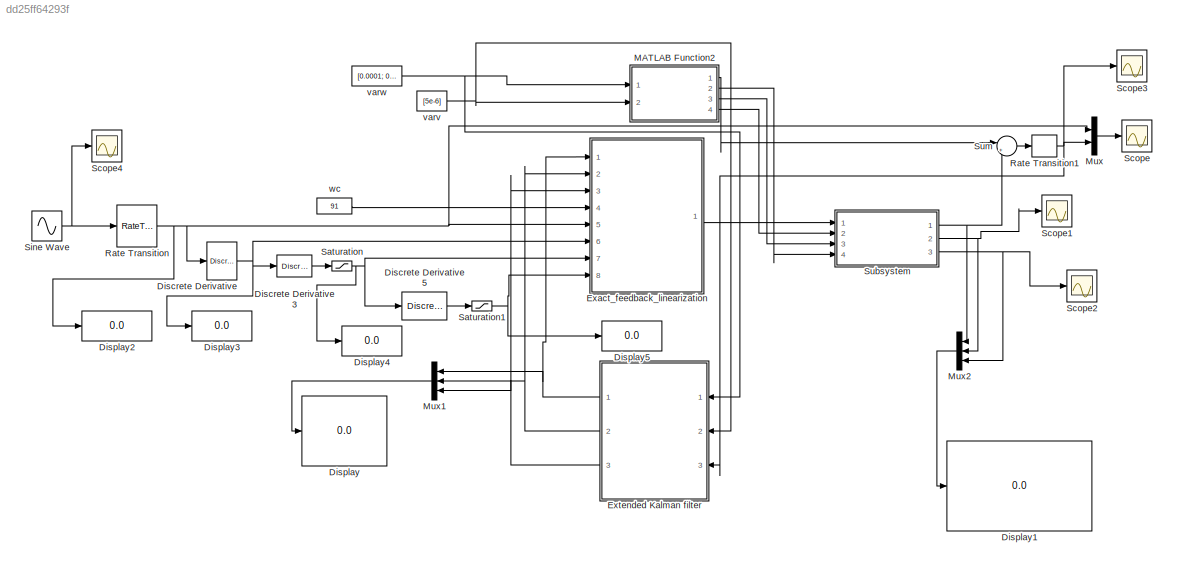
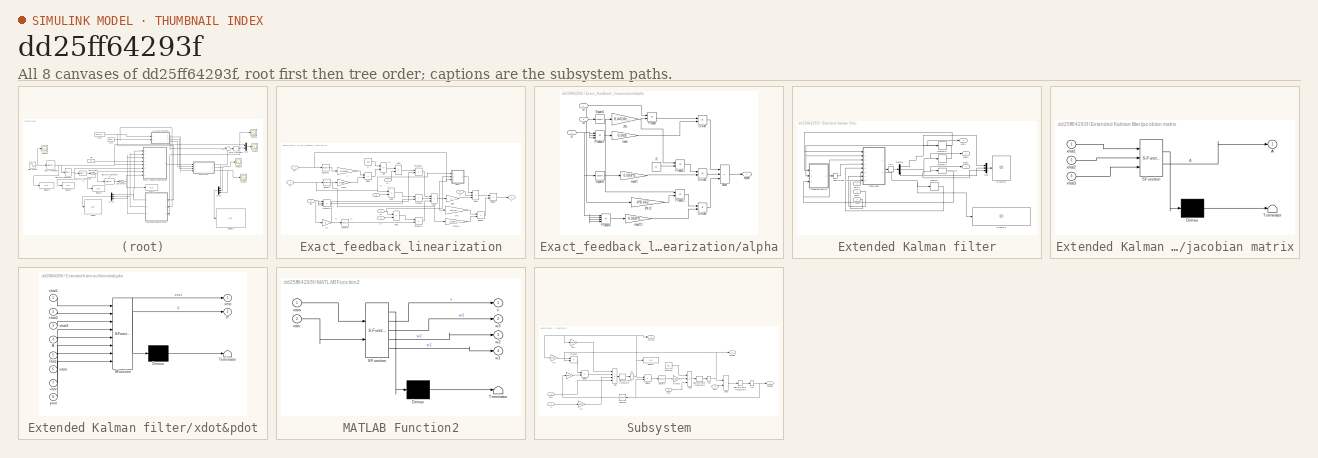
[diagram: thumbnail index - all 8 canvases of the model, root first then tree order]
MODEL slx_dd25ff64293f
KIND model
CONFIG AbsTol = auto
CONFIG EnableMultiTasking = off
CONFIG FixedStep = 0.001
CONFIG MaxStep = auto
CONFIG MinStep = auto
CONFIG RelTol = 1e-3
CONFIG SampleTimeConstraint = Unconstrained
CONFIG SolverName = FixedStepAuto
CONFIG StartTime = 0.0
CONFIG StopTime = 1
BLOCK [Reference] Discrete Derivative  REF=simulink/Discrete/Discrete Derivative
  Ports = [1, 1]
  SourceBlock = simulink/Discrete/Discrete Derivative
  SourceProductBaseCode = SL
  SourceType = Discrete Derivative
BLOCK [Reference] Discrete Derivative3  REF=simulink/Discrete/Discrete Derivative
  Ports = [1, 1]
  SourceBlock = simulink/Discrete/Discrete Derivative
  SourceProductBaseCode = SL
  SourceType = Discrete Derivative
BLOCK [Reference] Discrete Derivative5  REF=simulink/Discrete/Discrete Derivative
  Ports = [1, 1]
  SourceBlock = simulink/Discrete/Discrete Derivative
  SourceProductBaseCode = SL
  SourceType = Discrete Derivative
BLOCK [Display] Display
  Decimation = 1
  Ports = [1]
BLOCK [Display] Display1
  Decimation = 1
  Ports = [1]
BLOCK [Display] Display2
  Decimation = 1
  Ports = [1]
BLOCK [Display] Display3
  Decimation = 1
  Ports = [1]
BLOCK [Display] Display4
  Decimation = 1
  Ports = [1]
BLOCK [Display] Display5
  Decimation = 1
  Ports = [1]
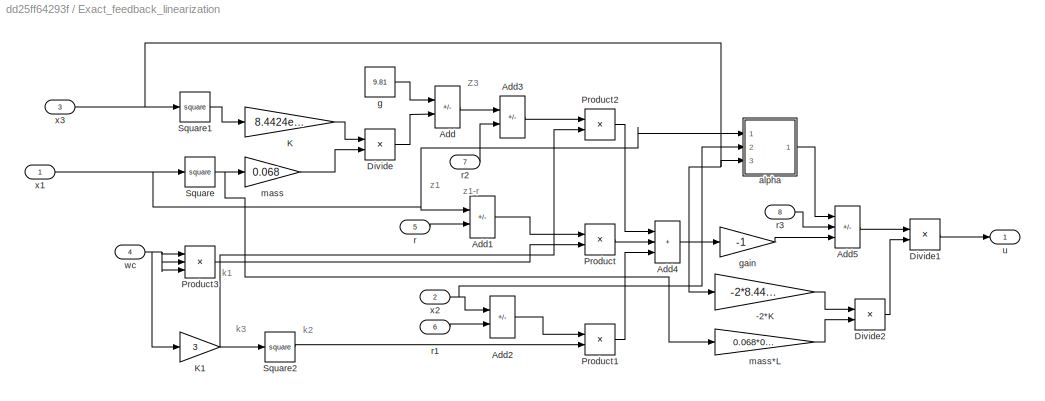
BLOCK [SubSystem] Exact_feedback_linearization
  Ports = [8, 1]
  RequestExecContextInheritance = off
BLOCK [Gain] Exact_feedback_linearization/-2*K
  Gain = -2*8.4424e-05
BLOCK [Sum] Exact_feedback_linearization/Add
  IconShape = rectangular
  Inputs = +-
  Ports = [2, 1]
BLOCK [Sum] Exact_feedback_linearization/Add1
  IconShape = rectangular
  Inputs = +-
  Ports = [2, 1]
BLOCK [Sum] Exact_feedback_linearization/Add2
  IconShape = rectangular
  Inputs = +-
  Ports = [2, 1]
BLOCK [Sum] Exact_feedback_linearization/Add3
  IconShape = rectangular
  Inputs = +-
  Ports = [2, 1]
BLOCK [Sum] Exact_feedback_linearization/Add4
  IconShape = rectangular
  Inputs = +++
  Ports = [3, 1]
BLOCK [Sum] Exact_feedback_linearization/Add5
  IconShape = rectangular
  Inputs = -++
  Ports = [3, 1]
BLOCK [Product] Exact_feedback_linearization/Divide
  Inputs = */
  Ports = [2, 1]
BLOCK [Product] Exact_feedback_linearization/Divide1
  Inputs = */
  Ports = [2, 1]
BLOCK [Product] Exact_feedback_linearization/Divide2
  Inputs = */
  Ports = [2, 1]
BLOCK [Gain] Exact_feedback_linearization/K
  Gain = 8.4424e-05
BLOCK [Gain] Exact_feedback_linearization/K1
  Gain = 3
BLOCK [Product] Exact_feedback_linearization/Product
  Ports = [2, 1]
BLOCK [Product] Exact_feedback_linearization/Product1
  Ports = [2, 1]
BLOCK [Product] Exact_feedback_linearization/Product2
  Ports = [2, 1]
BLOCK [Product] Exact_feedback_linearization/Product3
  Inputs = 3
  Ports = [3, 1]
BLOCK [Math] Exact_feedback_linearization/Square
  Operator = square
  Ports = [1, 1]
BLOCK [Math] Exact_feedback_linearization/Square1
  Operator = square
  Ports = [1, 1]
BLOCK [Math] Exact_feedback_linearization/Square2
  Operator = square
  Ports = [1, 1]
BLOCK [SubSystem] Exact_feedback_linearization/alpha
  Ports = [3, 1]
  RequestExecContextInheritance = off
BLOCK [Gain] Exact_feedback_linearization/alpha/2*K
  Gain = 8.4424e-05*2
BLOCK [Gain] Exact_feedback_linearization/alpha/4*K^2
  Gain = 4*8.4424e-05^2
BLOCK [Sum] Exact_feedback_linearization/alpha/Add
  IconShape = rectangular
  Inputs = ++-
  Ports = [3, 1]
BLOCK [Product] Exact_feedback_linearization/alpha/Divide
  Inputs = */
  Ports = [2, 1]
BLOCK [Product] Exact_feedback_linearization/alpha/Divide1
  Inputs = */
  Ports = [2, 1]
BLOCK [Product] Exact_feedback_linearization/alpha/Divide2
  Inputs = */
  Ports = [2, 1]
BLOCK [Product] Exact_feedback_linearization/alpha/Product
  Ports = [2, 1]
BLOCK [Product] Exact_feedback_linearization/alpha/Product1
  Ports = [2, 1]
BLOCK [Product] Exact_feedback_linearization/alpha/Product2
  Ports = [2, 1]
BLOCK [Product] Exact_feedback_linearization/alpha/Product3
  Inputs = 3
  Ports = [3, 1]
BLOCK [Product] Exact_feedback_linearization/alpha/Product4
  Inputs = 4
  Ports = [4, 1]
BLOCK [Constant] Exact_feedback_linearization/alpha/R
  Value = 22
BLOCK [Math] Exact_feedback_linearization/alpha/Square1
  Operator = square
  Ports = [1, 1]
BLOCK [Math] Exact_feedback_linearization/alpha/Square2
  Operator = square
  Ports = [1, 1]
BLOCK [Outport] Exact_feedback_linearization/alpha/alpha
BLOCK [Gain] Exact_feedback_linearization/alpha/mass
  Gain = 0.068
BLOCK [Gain] Exact_feedback_linearization/alpha/mass*l
  Gain = 0.068*0.227
BLOCK [Gain] Exact_feedback_linearization/alpha/mass*l1
  Gain = 0.068*0.227
BLOCK [Inport] Exact_feedback_linearization/alpha/x1
BLOCK [Inport] Exact_feedback_linearization/alpha/x2
  Port = 2
BLOCK [Inport] Exact_feedback_linearization/alpha/x3
  Port = 3
BLOCK [Constant] Exact_feedback_linearization/g
  Value = 9.81
BLOCK [Gain] Exact_feedback_linearization/gain
  Gain = -1
BLOCK [Gain] Exact_feedback_linearization/mass
  Gain = 0.068
BLOCK [Gain] Exact_feedback_linearization/mass*L
  Gain = 0.068*0.227
BLOCK [Inport] Exact_feedback_linearization/r
  Port = 5
BLOCK [Inport] Exact_feedback_linearization/r1
  Port = 6
BLOCK [Inport] Exact_feedback_linearization/r2
  Port = 7
BLOCK [Inport] Exact_feedback_linearization/r3
  Port = 8
BLOCK [Outport] Exact_feedback_linearization/u
BLOCK [Inport] Exact_feedback_linearization/wc
  Port = 4
BLOCK [Inport] Exact_feedback_linearization/x1
BLOCK [Inport] Exact_feedback_linearization/x2
  Port = 2
BLOCK [Inport] Exact_feedback_linearization/x3
  Port = 3
BLOCK [SubSystem] Extended Kalman filter
  Ports = [3, 3]
  RequestExecContextInheritance = off
BLOCK [Demux] Extended Kalman filter/Demux
  Outputs = 3
  Ports = [1, 3]
BLOCK [Display] Extended Kalman filter/Display1
  Decimation = 1
  Ports = [1]
BLOCK [Display] Extended Kalman filter/Display3
  Decimation = 1
  Ports = [1]
BLOCK [InitialCondition] Extended Kalman filter/IC2
  Value = [0.0095;0;0.84]
BLOCK [Memory] Extended Kalman filter/Memory
  InitialCondition = [0.00003 0 0;0 0.1 0;0 0 10]
BLOCK [Memory] Extended Kalman filter/Memory1
  InitialCondition = 0.0001
BLOCK [Memory] Extended Kalman filter/Memory2
  InitialCondition = 0.0095
BLOCK [Memory] Extended Kalman filter/Memory3
  InitialCondition = 0.84
BLOCK [Mux] Extended Kalman filter/Mux
  DisplayOption = bar
  Inputs = 3
  Ports = [3, 1]
BLOCK [ZeroOrderHold] Extended Kalman filter/Zero-Order Hold
  SampleTime = 0.001
BLOCK [SubSystem] Extended Kalman filter/jacobian matrix
  ErrorFcn = Stateflow.Translate.translate
  PermitHierarchicalResolution = ExplicitOnly
  Ports = [3, 1]
  RequestExecContextInheritance = off
  SFBlockType = MATLAB Function
  TreatAsAtomicUnit = on
BLOCK [Demux] Extended Kalman filter/jacobian matrix/ Demux 
  Outputs = 1
  Ports = [1, 1]
BLOCK [S-Function] Extended Kalman filter/jacobian matrix/ SFunction 
  EnableBusSupport = on
  FunctionName = sf_sfun
  PortCounts = [3 2]
  Ports = [3, 2]
  SFcnIsStateOwnerBlock = off
  SFunctionDeploymentMode = off
  Tag = Stateflow S-Function 2
BLOCK [Terminator] Extended Kalman filter/jacobian matrix/ Terminator 
BLOCK [Outport] Extended Kalman filter/jacobian matrix/A
BLOCK [Inport] Extended Kalman filter/jacobian matrix/xhat1
BLOCK [Inport] Extended Kalman filter/jacobian matrix/xhat2
  Port = 2
BLOCK [Inport] Extended Kalman filter/jacobian matrix/xhat3
  Port = 3
BLOCK [Inport] Extended Kalman filter/varv1
  Port = 2
BLOCK [Inport] Extended Kalman filter/varw1
BLOCK [SubSystem] Extended Kalman filter/xdot&pdot
  ErrorFcn = Stateflow.Translate.translate
  PermitHierarchicalResolution = ExplicitOnly
  Ports = [8, 2]
  RequestExecContextInheritance = off
  SFBlockType = MATLAB Function
  TreatAsAtomicUnit = on
BLOCK [Demux] Extended Kalman filter/xdot&pdot/ Demux 
  Outputs = 1
  Ports = [1, 1]
BLOCK [S-Function] Extended Kalman filter/xdot&pdot/ SFunction 
  EnableBusSupport = on
  FunctionName = sf_sfun
  PortCounts = [8 3]
  Ports = [8, 3]
  SFcnIsStateOwnerBlock = off
  SFunctionDeploymentMode = off
  Tag = Stateflow S-Function 1
BLOCK [Terminator] Extended Kalman filter/xdot&pdot/ Terminator 
BLOCK [Inport] Extended Kalman filter/xdot&pdot/A
  Port = 4
BLOCK [Outport] Extended Kalman filter/xdot&pdot/P
  Port = 2
BLOCK [Inport] Extended Kalman filter/xdot&pdot/Pold
  Port = 5
BLOCK [Inport] Extended Kalman filter/xdot&pdot/varv
  Port = 7
BLOCK [Inport] Extended Kalman filter/xdot&pdot/varw
  Port = 6
BLOCK [Outport] Extended Kalman filter/xdot&pdot/xest
BLOCK [Inport] Extended Kalman filter/xdot&pdot/xhat1
BLOCK [Inport] Extended Kalman filter/xdot&pdot/xhat2
  Port = 2
BLOCK [Inport] Extended Kalman filter/xdot&pdot/xhat3
  Port = 3
BLOCK [Inport] Extended Kalman filter/xdot&pdot/yout
  Port = 8
BLOCK [Outport] Extended Kalman filter/xhat1
BLOCK [Outport] Extended Kalman filter/xhat2
  Port = 2
BLOCK [Outport] Extended Kalman filter/xhat3
  Port = 3
BLOCK [Inport] Extended Kalman filter/yout
  Port = 3
BLOCK [SubSystem] MATLAB Function2
  ErrorFcn = Stateflow.Translate.translate
  PermitHierarchicalResolution = ExplicitOnly
  Ports = [2, 4]
  RequestExecContextInheritance = off
  SFBlockType = MATLAB Function
  TreatAsAtomicUnit = on
BLOCK [Demux] MATLAB Function2/ Demux 
  Outputs = 1
  Ports = [1, 1]
BLOCK [S-Function] MATLAB Function2/ SFunction 
  EnableBusSupport = on
  FunctionName = sf_sfun
  PortCounts = [2 5]
  Ports = [2, 5]
  SFcnIsStateOwnerBlock = off
  SFunctionDeploymentMode = off
  Tag = Stateflow S-Function 3
BLOCK [Terminator] MATLAB Function2/ Terminator 
BLOCK [Outport] MATLAB Function2/v
BLOCK [Inport] MATLAB Function2/varv
  Port = 2
BLOCK [Inport] MATLAB Function2/varw
BLOCK [Outport] MATLAB Function2/w1
  Port = 4
BLOCK [Outport] MATLAB Function2/w2
  Port = 3
BLOCK [Outport] MATLAB Function2/w3
  Port = 2
BLOCK [Mux] Mux
  DisplayOption = bar
  Inputs = 2
  Ports = [2, 1]
BLOCK [Mux] Mux1
  DisplayOption = bar
  Inputs = 3
  Ports = [3, 1]
BLOCK [Mux] Mux2
  DisplayOption = bar
  Inputs = 3
  Ports = [3, 1]
BLOCK [RateTransition] Rate Transition
BLOCK [RateTransition] Rate Transition1
BLOCK [Saturate] Saturation
  LowerLimit = -1
  UpperLimit = 1
BLOCK [Saturate] Saturation1
  LowerLimit = -4
  UpperLimit = 4
BLOCK [Scope] Scope
  Floating = off
  NumInputPorts = 1
  Ports = [1]
  ScopeSpecificationString = Simulink.scopes.TimeScopeBlockCfg('CurrentConfiguration', extmgr.ConfigurationSet(extmgr.Configuration('Core','General UI',true),extmgr.Configuration('Core','Source UI',true),extmgr.Configuration('Sources','WiredSimulink',true,'DataLoggingVariableName','ScopeData3'),extmgr.Configuration('Visuals','Time Domain',true,'SerializedDisplays',{struct('MinYLimReal','-20509765062330348814894003248927041085...<+2536ch>
BLOCK [Scope] Scope1
  Floating = off
  NumInputPorts = 1
  Ports = [1]
  ScopeSpecificationString = Simulink.scopes.TimeScopeBlockCfg('CurrentConfiguration', extmgr.ConfigurationSet(extmgr.Configuration('Core','General UI',true),extmgr.Configuration('Core','Source UI',true),extmgr.Configuration('Sources','WiredSimulink',true,'DataLoggingVariableName','ScopeData1'),extmgr.Configuration('Visuals','Time Domain',true,'SerializedDisplays',{struct('MinYLimReal','-0.00015','MaxYLimReal','0.00135','YLab...<+1401ch>
BLOCK [Scope] Scope2
  Floating = off
  NumInputPorts = 1
  Ports = [1]
  ScopeSpecificationString = Simulink.scopes.TimeScopeBlockCfg('CurrentConfiguration', extmgr.ConfigurationSet(extmgr.Configuration('Core','General UI',true),extmgr.Configuration('Core','Source UI',true),extmgr.Configuration('Sources','WiredSimulink',true,'DataLoggingVariableName','ScopeData2'),extmgr.Configuration('Visuals','Time Domain',true,'SerializedDisplays',{struct('MinYLimReal','-0.00015','MaxYLimReal','0.00135','YLab...<+1401ch>
BLOCK [Scope] Scope3
  Floating = off
  NumInputPorts = 1
  Ports = [1]
  ScopeSpecificationString = Simulink.scopes.TimeScopeBlockCfg('CurrentConfiguration', extmgr.ConfigurationSet(extmgr.Configuration('Core','General UI',true),extmgr.Configuration('Core','Source UI',true),extmgr.Configuration('Sources','WiredSimulink',true),extmgr.Configuration('Visuals','Time Domain',true,'SerializedDisplays',{struct('MinYLimReal','-0.24743','MaxYLimReal','2.2793','YLabelReal','','MinYLimMag','0.00000','MaxYL...<+1346ch>
BLOCK [Scope] Scope4
  Floating = off
  NumInputPorts = 1
  Ports = [1]
  ScopeSpecificationString = Simulink.scopes.TimeScopeBlockCfg('CurrentConfiguration', extmgr.ConfigurationSet(extmgr.Configuration('Core','General UI',true),extmgr.Configuration('Core','Source UI',true),extmgr.Configuration('Sources','WiredSimulink',true,'DataLoggingVariableName','ScopeData1'),extmgr.Configuration('Visuals','Time Domain',true,'SerializedDisplays',{struct('MinYLimReal','-0.0125','MaxYLimReal','0.1125','YLabel...<+1389ch>
BLOCK [Sin] Sine Wave
  Amplitude = 0.1
  Frequency = 3
  Ports = [0, 1]
  SampleTime = 0
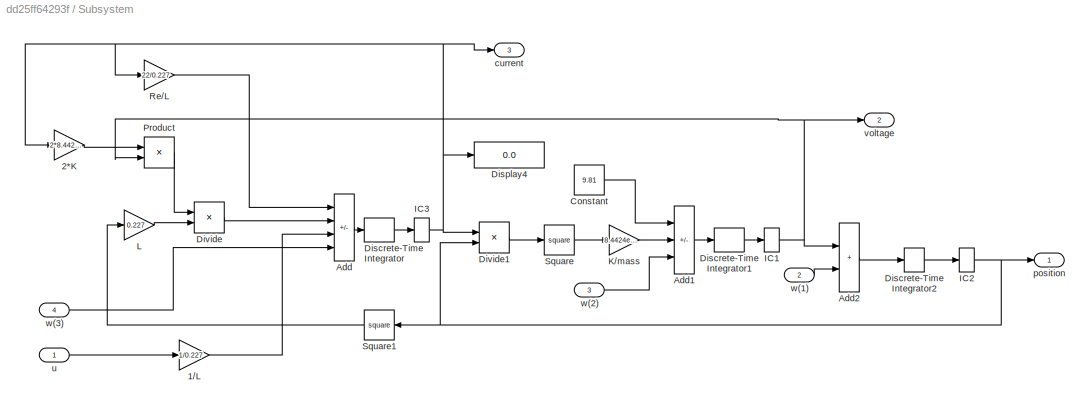
BLOCK [SubSystem] Subsystem
  Ports = [4, 3]
  RequestExecContextInheritance = off
BLOCK [Gain] Subsystem/1//L
  Gain = 1/0.227
BLOCK [Gain] Subsystem/2*K
  Gain = 2*8.4424e-05
BLOCK [Sum] Subsystem/Add
  IconShape = rectangular
  Inputs = -+++
  Ports = [4, 1]
BLOCK [Sum] Subsystem/Add1
  IconShape = rectangular
  Inputs = +-+
  Ports = [3, 1]
BLOCK [Sum] Subsystem/Add2
  IconShape = rectangular
  Ports = [2, 1]
BLOCK [Constant] Subsystem/Constant
  SampleTime = -1
  Value = 9.81
BLOCK [DiscreteIntegrator] Subsystem/Discrete-Time Integrator
  ICPrevOutput = DiscIntNeverNeededParam
  ICPrevScaledInput = DiscIntNeverNeededParam
  InitialConditionSetting = Auto
  LowerSaturationLimit = -100
  Ports = [1, 1]
  SampleTime = -1
  UpperSaturationLimit = 100
BLOCK [DiscreteIntegrator] Subsystem/Discrete-Time Integrator1
  ICPrevOutput = DiscIntNeverNeededParam
  ICPrevScaledInput = DiscIntNeverNeededParam
  InitialConditionSetting = Auto
  LowerSaturationLimit = -50
  Ports = [1, 1]
  SampleTime = -1
  UpperSaturationLimit = 50
BLOCK [DiscreteIntegrator] Subsystem/Discrete-Time Integrator2
  ICPrevOutput = DiscIntNeverNeededParam
  ICPrevScaledInput = DiscIntNeverNeededParam
  InitialConditionSetting = Auto
  LowerSaturationLimit = -5
  Ports = [1, 1]
  SampleTime = -1
  UpperSaturationLimit = 5
BLOCK [Display] Subsystem/Display4
  Decimation = 1
  Ports = [1]
BLOCK [Product] Subsystem/Divide
  Inputs = */
  Ports = [2, 1]
BLOCK [Product] Subsystem/Divide1
  Inputs = */
  Ports = [2, 1]
BLOCK [InitialCondition] Subsystem/IC1
  Value = 0
BLOCK [InitialCondition] Subsystem/IC2
  Value = 0.009
BLOCK [InitialCondition] Subsystem/IC3
  Value = 0.8
BLOCK [Gain] Subsystem/K//mass
  Gain = 8.4424e-05/0.068
BLOCK [Gain] Subsystem/L
  Gain = 0.227
BLOCK [Product] Subsystem/Product
  Ports = [2, 1]
BLOCK [Gain] Subsystem/Re//L
  Gain = 22/0.227
BLOCK [Math] Subsystem/Square
  Operator = square
  Ports = [1, 1]
BLOCK [Math] Subsystem/Square1
  Operator = square
  Ports = [1, 1]
BLOCK [Outport] Subsystem/current
  Port = 3
BLOCK [Outport] Subsystem/position
BLOCK [Inport] Subsystem/u
BLOCK [Outport] Subsystem/voltage
  Port = 2
BLOCK [Inport] Subsystem/w(1)
  Port = 2
BLOCK [Inport] Subsystem/w(2)
  Port = 3
BLOCK [Inport] Subsystem/w(3)
  Port = 4
BLOCK [Sum] Sum
  Inputs = |++
  Ports = [2, 1]
BLOCK [Constant] varv
  SampleTime = -1
  Value = [5e-6]
BLOCK [Constant] varw
  SampleTime = -1
  Value = [0.0001; 0.01;0.0001]
BLOCK [Constant] wc
  Value = 91
ANNOTATION Exact_feedback_linearization: Z3
ANNOTATION Exact_feedback_linearization: k1
ANNOTATION Exact_feedback_linearization: k2
ANNOTATION Exact_feedback_linearization: k3
ANNOTATION Exact_feedback_linearization: z1
ANNOTATION Exact_feedback_linearization: z1-r
LINE Discrete Derivative3:1 -> Saturation:1
LINE Discrete Derivative5:1 -> Saturation1:1
NET Discrete Derivative:1 -> Discrete Derivative3:1, Display3:1, Exact_feedback_linearization:6
LINE Exact_feedback_linearization/-2*K:1 -> Exact_feedback_linearization/Divide2:1
LINE Exact_feedback_linearization/Add1:1 -> Exact_feedback_linearization/Product:1
LINE Exact_feedback_linearization/Add2:1 -> Exact_feedback_linearization/Product1:1
LINE Exact_feedback_linearization/Add3:1 -> Exact_feedback_linearization/Product2:1
LINE Exact_feedback_linearization/Add4:1 -> Exact_feedback_linearization/gain:1
LINE Exact_feedback_linearization/Add5:1 -> Exact_feedback_linearization/Divide1:1
LINE Exact_feedback_linearization/Add:1 -> Exact_feedback_linearization/Add3:1
LINE Exact_feedback_linearization/Divide1:1 -> Exact_feedback_linearization/u:1
LINE Exact_feedback_linearization/Divide2:1 -> Exact_feedback_linearization/Divide1:2
LINE Exact_feedback_linearization/Divide:1 -> Exact_feedback_linearization/Add:2
NET Exact_feedback_linearization/K1:1 -> Exact_feedback_linearization/Product2:2, Exact_feedback_linearization/Square2:1
LINE Exact_feedback_linearization/K:1 -> Exact_feedback_linearization/Divide:1
LINE Exact_feedback_linearization/Product1:1 -> Exact_feedback_linearization/Add4:3
LINE Exact_feedback_linearization/Product2:1 -> Exact_feedback_linearization/Add4:1
LINE Exact_feedback_linearization/Product3:1 -> Exact_feedback_linearization/Product:2
LINE Exact_feedback_linearization/Product:1 -> Exact_feedback_linearization/Add4:2
LINE Exact_feedback_linearization/Square1:1 -> Exact_feedback_linearization/K:1
LINE Exact_feedback_linearization/Square2:1 -> Exact_feedback_linearization/Product1:2
NET Exact_feedback_linearization/Square:1 -> Exact_feedback_linearization/mass*L:1, Exact_feedback_linearization/mass:1
NET Exact_feedback_linearization/alpha/2*K:1 -> Exact_feedback_linearization/alpha/Product1:1, Exact_feedback_linearization/alpha/Product:2
LINE Exact_feedback_linearization/alpha/4*K^2:1 -> Exact_feedback_linearization/alpha/Product2:2
LINE Exact_feedback_linearization/alpha/Add:1 -> Exact_feedback_linearization/alpha/alpha:1
LINE Exact_feedback_linearization/alpha/Divide1:1 -> Exact_feedback_linearization/alpha/Add:2
LINE Exact_feedback_linearization/alpha/Divide2:1 -> Exact_feedback_linearization/alpha/Add:3
LINE Exact_feedback_linearization/alpha/Divide:1 -> Exact_feedback_linearization/alpha/Add:1
LINE Exact_feedback_linearization/alpha/Product1:1 -> Exact_feedback_linearization/alpha/Divide1:1
LINE Exact_feedback_linearization/alpha/Product2:1 -> Exact_feedback_linearization/alpha/Divide2:1
LINE Exact_feedback_linearization/alpha/Product3:1 -> Exact_feedback_linearization/alpha/mass:1
LINE Exact_feedback_linearization/alpha/Product4:1 -> Exact_feedback_linearization/alpha/mass*l1:1
LINE Exact_feedback_linearization/alpha/Product:1 -> Exact_feedback_linearization/alpha/Divide:1
LINE Exact_feedback_linearization/alpha/R:1 -> Exact_feedback_linearization/alpha/Product1:2
NET Exact_feedback_linearization/alpha/Square1:1 -> Exact_feedback_linearization/alpha/2*K:1, Exact_feedback_linearization/alpha/Product2:1
LINE Exact_feedback_linearization/alpha/Square2:1 -> Exact_feedback_linearization/alpha/mass*l:1
LINE Exact_feedback_linearization/alpha/mass*l1:1 -> Exact_feedback_linearization/alpha/Divide2:2
LINE Exact_feedback_linearization/alpha/mass*l:1 -> Exact_feedback_linearization/alpha/Divide1:2
LINE Exact_feedback_linearization/alpha/mass:1 -> Exact_feedback_linearization/alpha/Divide:2
NET Exact_feedback_linearization/alpha/x1:1 -> Exact_feedback_linearization/alpha/Product3:1, Exact_feedback_linearization/alpha/Product3:2, Exact_feedback_linearization/alpha/Product3:3, Exact_feedback_linearization/alpha/Product4:1, Exact_feedback_linearization/alpha/Product4:2, Exact_feedback_linearization/alpha/Product4:3, Exact_feedback_linearization/alpha/Product4:4, Exact_feedback_linearization/alpha/Square2:1
NET Exact_feedback_linearization/alpha/x2:1 -> Exact_feedback_linearization/alpha/4*K^2:1, Exact_feedback_linearization/alpha/Product:1
LINE Exact_feedback_linearization/alpha/x3:1 -> Exact_feedback_linearization/alpha/Square1:1
LINE Exact_feedback_linearization/alpha:1 -> Exact_feedback_linearization/Add5:1
LINE Exact_feedback_linearization/g:1 -> Exact_feedback_linearization/Add:1
LINE Exact_feedback_linearization/gain:1 -> Exact_feedback_linearization/Add5:3
LINE Exact_feedback_linearization/mass*L:1 -> Exact_feedback_linearization/Divide2:2
LINE Exact_feedback_linearization/mass:1 -> Exact_feedback_linearization/Divide:2
LINE Exact_feedback_linearization/r1:1 -> Exact_feedback_linearization/Add2:2
LINE Exact_feedback_linearization/r2:1 -> Exact_feedback_linearization/Add3:2
LINE Exact_feedback_linearization/r3:1 -> Exact_feedback_linearization/Add5:2
LINE Exact_feedback_linearization/r:1 -> Exact_feedback_linearization/Add1:2
NET Exact_feedback_linearization/wc:1 -> Exact_feedback_linearization/K1:1, Exact_feedback_linearization/Product3:1, Exact_feedback_linearization/Product3:2, Exact_feedback_linearization/Product3:3
NET Exact_feedback_linearization/x1:1 -> Exact_feedback_linearization/Add1:1, Exact_feedback_linearization/Square:1, Exact_feedback_linearization/alpha:1
NET Exact_feedback_linearization/x2:1 -> Exact_feedback_linearization/Add2:1, Exact_feedback_linearization/alpha:2
NET Exact_feedback_linearization/x3:1 -> Exact_feedback_linearization/-2*K:1, Exact_feedback_linearization/Square1:1, Exact_feedback_linearization/alpha:3
LINE Exact_feedback_linearization:1 -> Subsystem:1
NET Extended Kalman filter/Demux:1 -> Extended Kalman filter/Memory2:1, Extended Kalman filter/Mux:1, Extended Kalman filter/xhat1:1
NET Extended Kalman filter/Demux:2 -> Extended Kalman filter/Memory1:1, Extended Kalman filter/Mux:2, Extended Kalman filter/xhat2:1
NET Extended Kalman filter/Demux:3 -> Extended Kalman filter/Memory3:1, Extended Kalman filter/Mux:3, Extended Kalman filter/xhat3:1
LINE Extended Kalman filter/IC2:1 -> Extended Kalman filter/Demux:1
NET Extended Kalman filter/Memory1:1 -> Extended Kalman filter/jacobian matrix:2, Extended Kalman filter/xdot&pdot:2
NET Extended Kalman filter/Memory2:1 -> Extended Kalman filter/jacobian matrix:1, Extended Kalman filter/xdot&pdot:1
NET Extended Kalman filter/Memory3:1 -> Extended Kalman filter/jacobian matrix:3, Extended Kalman filter/xdot&pdot:3
LINE Extended Kalman filter/Memory:1 -> Extended Kalman filter/xdot&pdot:5
LINE Extended Kalman filter/Mux:1 -> Extended Kalman filter/Display3:1
LINE Extended Kalman filter/Zero-Order Hold:1 -> Extended Kalman filter/xdot&pdot:4
LINE Extended Kalman filter/jacobian matrix:1 -> Extended Kalman filter/Zero-Order Hold:1
LINE Extended Kalman filter/varv1:1 -> Extended Kalman filter/xdot&pdot:7
LINE Extended Kalman filter/varw1:1 -> Extended Kalman filter/xdot&pdot:6
LINE Extended Kalman filter/xdot&pdot:1 -> Extended Kalman filter/IC2:1
NET Extended Kalman filter/xdot&pdot:2 -> Extended Kalman filter/Display1:1, Extended Kalman filter/Memory:1
LINE Extended Kalman filter/yout:1 -> Extended Kalman filter/xdot&pdot:8
NET Extended Kalman filter:1 -> Exact_feedback_linearization:1, Mux1:1
NET Extended Kalman filter:2 -> Exact_feedback_linearization:2, Mux1:2
NET Extended Kalman filter:3 -> Exact_feedback_linearization:3, Mux1:3
LINE MATLAB Function2:1 -> Sum:1
LINE MATLAB Function2:2 -> Subsystem:4
LINE MATLAB Function2:3 -> Subsystem:3
LINE MATLAB Function2:4 -> Subsystem:2
LINE Mux1:1 -> Display:1
LINE Mux2:1 -> Display1:1
LINE Mux:1 -> Scope:1
NET Rate Transition1:1 -> Extended Kalman filter:3, Mux:2, Scope3:1
NET Rate Transition:1 -> Discrete Derivative:1, Display2:1, Exact_feedback_linearization:5, Mux:1
NET Saturation1:1 -> Display5:1, Exact_feedback_linearization:8
NET Saturation:1 -> Discrete Derivative5:1, Display4:1, Exact_feedback_linearization:7
NET Sine Wave:1 -> Rate Transition:1, Scope4:1
LINE Subsystem/1//L:1 -> Subsystem/Add:3
LINE Subsystem/2*K:1 -> Subsystem/Product:1
LINE Subsystem/Add1:1 -> Subsystem/Discrete-Time Integrator1:1
LINE Subsystem/Add2:1 -> Subsystem/Discrete-Time Integrator2:1
LINE Subsystem/Add:1 -> Subsystem/Discrete-Time Integrator:1
LINE Subsystem/Constant:1 -> Subsystem/Add1:1
LINE Subsystem/Discrete-Time Integrator1:1 -> Subsystem/IC1:1
LINE Subsystem/Discrete-Time Integrator2:1 -> Subsystem/IC2:1
LINE Subsystem/Discrete-Time Integrator:1 -> Subsystem/IC3:1
LINE Subsystem/Divide1:1 -> Subsystem/Square:1
LINE Subsystem/Divide:1 -> Subsystem/Add:2
NET Subsystem/IC1:1 -> Subsystem/Add2:1, Subsystem/Product:2, Subsystem/voltage:1
NET Subsystem/IC2:1 -> Subsystem/Divide1:2, Subsystem/Square1:1, Subsystem/position:1
NET Subsystem/IC3:1 -> Subsystem/2*K:1, Subsystem/Display4:1, Subsystem/Divide1:1, Subsystem/Re//L:1, Subsystem/current:1
LINE Subsystem/K//mass:1 -> Subsystem/Add1:2
LINE Subsystem/L:1 -> Subsystem/Divide:2
LINE Subsystem/Product:1 -> Subsystem/Divide:1
LINE Subsystem/Re//L:1 -> Subsystem/Add:1
LINE Subsystem/Square1:1 -> Subsystem/L:1
LINE Subsystem/Square:1 -> Subsystem/K//mass:1
LINE Subsystem/u:1 -> Subsystem/1//L:1
LINE Subsystem/w(1):1 -> Subsystem/Add2:2
LINE Subsystem/w(2):1 -> Subsystem/Add1:3
LINE Subsystem/w(3):1 -> Subsystem/Add:4
NET Subsystem:1 -> Mux2:1, Sum:2
NET Subsystem:2 -> Mux2:2, Scope1:1
NET Subsystem:3 -> Mux2:3, Scope2:1
LINE Sum:1 -> Rate Transition1:1
NET varv:1 -> Extended Kalman filter:2, MATLAB Function2:2
NET varw:1 -> Extended Kalman filter:1, MATLAB Function2:1
LINE wc:1 -> Exact_feedback_linearization:4
note: NET lines group one-source signal fan-out (src -> all destinations, sorted); 1:1 wires keep LINE
CHART Extended Kalman filter/xdot&pdot states=1 transitions=1
  STATE_LABEL 'eML_blk_kernel()'
  STATE_LABEL 'SCRIPT:\nfunction [xest, P] = fcn(xhat1,xhat2,xhat3,A,Pold,varw,varv,yout)\nx0 = 0.009;                             %initial position in meter\nmass = 0.068;                           %Kg (mass of the ball))\ng = 9.81;\nL0 = 0.018761;                           %Hertz\nL=0.227;                                %Hertz\nK = (x0*L0)/2;                           %electromagnet force constant\nRe= 22;            ...<+265ch>'
CHART Extended Kalman filter/jacobian matrix states=1 transitions=1
  STATE_LABEL 'eML_blk_kernel()'
  STATE_LABEL 'SCRIPT:\nfunction A = fcn(xhat1,xhat2,xhat3)\ndt = 0.001;\nx0 = 0.009;                               %initial position in meter\nmass = 0.068;                            %Kg (mass of the ball))\ng = 9.81;\nL0 = 0.018761;                          %Henry (Kg)(m^2)(s^-2)(A^-2)\n%L0 = -3.1269375;                         %Henry (Kg)(m)(V)(s^-2)(A^-2)\nLind=0.227;                              %Henry(in terms of...<+432ch>'
CHART MATLAB Function2 states=1 transitions=1
  STATE_LABEL 'eML_blk_kernel()'
  STATE_LABEL "SCRIPT:\nfunction [v,w3,w2,w1] = noise(varw,varv)\nw1 = wgn(1,1,varw(1),'linear');\nw2 =wgn(1,1,varw(2),'linear'); \nw3 = wgn(1,1,varw(3),'linear');\nv = wgn(1,1,varv,'linear');\n"
CHART  states=0 transitions=0
CHART  states=0 transitions=0
CHART  states=0 transitions=0
